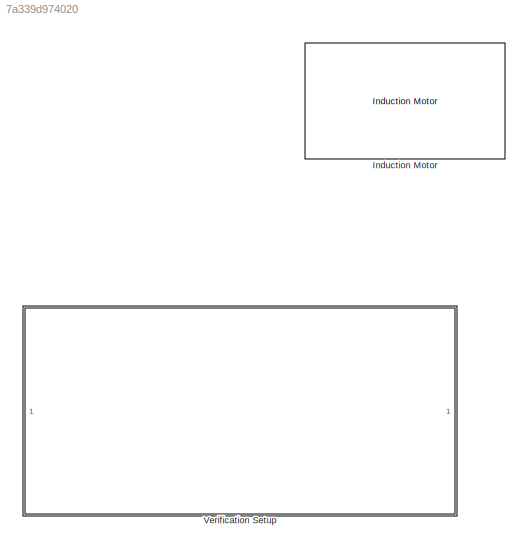
MODEL slx_7a339d974020
KIND model
CONFIG AbsTol = auto
CONFIG EnableMultiTasking = off
CONFIG FixedStep = 0.01
CONFIG MaxStep = auto
CONFIG MinStep = auto
CONFIG RelTol = 1e-3
CONFIG SampleTimeConstraint = Unconstrained
CONFIG SolverName = FixedStepAuto
CONFIG StartTime = 0.0
CONFIG StopTime = 50
BLOCK [Reference] Induction Motor  REF=autolibim/Induction Motor
  Commented = on
  LibrarySourceBlock = autolibemachines/Induction Motor
  SourceBlock = autolibim/Induction Motor
  SourceType = Induction Motor
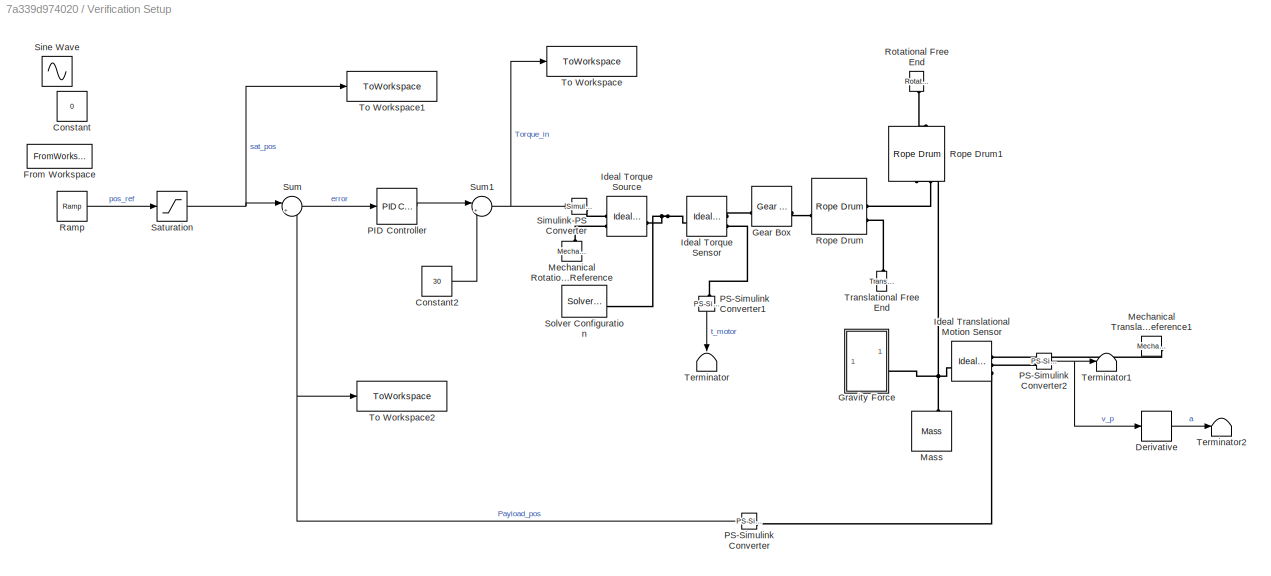
BLOCK [SubSystem] Verification Setup
BLOCK [Constant] Verification Setup/Constant
  Commented = on
  Value = 0
BLOCK [Constant] Verification Setup/Constant2
  Value = 30
BLOCK [Derivative] Verification Setup/Derivative
BLOCK [FromWorkspace] Verification Setup/From Workspace
  Commented = on
  SampleTime = 0.01
  VariableName = winch_pos
BLOCK [Reference] Verification Setup/Gear Box  REF=fl_lib/Mechanical/Mechanisms/Gear Box
  SourceBlock = fl_lib/Mechanical/Mechanisms/Gear Box
  SourceType = Gear Box
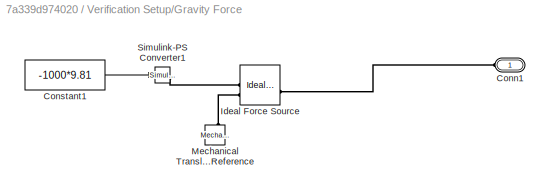
BLOCK [SubSystem] Verification Setup/Gravity Force
  NameLocation = top
BLOCK [PMIOPort] Verification Setup/Gravity Force/Conn1
  Side = Left
BLOCK [Constant] Verification Setup/Gravity Force/Constant1
  Value = -1000*9.81
BLOCK [Reference] Verification Setup/Gravity Force/Ideal Force Source  REF=fl_lib/Mechanical/Mechanical Sources/Ideal Force Source
  SourceBlock = fl_lib/Mechanical/Mechanical Sources/Ideal Force Source
  SourceType = Ideal Force Source
BLOCK [Reference] Verification Setup/Gravity Force/Mechanical Translational Reference  REF=fl_lib/Mechanical/Translational
Elements/Mechanical
Translational
Reference
  NameLocation = right
  SourceBlock = fl_lib/Mechanical/Translational\nElements/Mechanical\nTranslational\nReference
  SourceType = Mechanical\nTranslational\nReference
BLOCK [Reference] Verification Setup/Gravity Force/Simulink-PS Converter1  REF=nesl_utility/Simulink-PS
Converter
  SourceBlock = nesl_utility/Simulink-PS\nConverter
  SourceType = Simulink-PS\nConverter
BLOCK [Reference] Verification Setup/Ideal Torque Sensor  REF=fl_lib/Mechanical/Mechanical Sensors/Ideal Torque Sensor
  SourceBlock = fl_lib/Mechanical/Mechanical Sensors/Ideal Torque Sensor
  SourceType = Ideal Torque Sensor
BLOCK [Reference] Verification Setup/Ideal Torque Source  REF=fl_lib/Mechanical/Mechanical Sources/Ideal Torque Source
  SourceBlock = fl_lib/Mechanical/Mechanical Sources/Ideal Torque Source
  SourceType = Ideal Torque Source
BLOCK [Reference] Verification Setup/Ideal Translational Motion Sensor  REF=fl_lib/Mechanical/Mechanical Sensors/Ideal Translational
Motion Sensor
  SourceBlock = fl_lib/Mechanical/Mechanical Sensors/Ideal Translational\nMotion Sensor
  SourceType = Ideal Translational\nMotion Sensor
BLOCK [Reference] Verification Setup/Mass  REF=fl_lib/Mechanical/Translational
Elements/Mass
  NameLocation = right
  SourceBlock = fl_lib/Mechanical/Translational\nElements/Mass
  SourceType = Mass
BLOCK [Reference] Verification Setup/Mechanical Rotational Reference  REF=fl_lib/Mechanical/Rotational Elements/Mechanical
Rotational Reference
  NameLocation = right
  SourceBlock = fl_lib/Mechanical/Rotational Elements/Mechanical\nRotational Reference
  SourceType = Mechanical\nRotational Reference
BLOCK [Reference] Verification Setup/Mechanical Translational Reference1  REF=fl_lib/Mechanical/Translational
Elements/Mechanical
Translational
Reference
  NameLocation = top
  SourceBlock = fl_lib/Mechanical/Translational\nElements/Mechanical\nTranslational\nReference
  SourceType = Mechanical\nTranslational\nReference
BLOCK [Reference] Verification Setup/PID Controller  REF=slpidlib/PID Controller
  LibrarySourceBlock = simulink/Continuous/PID Controller
  SourceBlock = slpidlib/PID Controller
  SourceType = PID 1dof
BLOCK [Reference] Verification Setup/PS-Simulink Converter  REF=nesl_utility/PS-Simulink
Converter
  NameLocation = top
  SourceBlock = nesl_utility/PS-Simulink\nConverter
  SourceType = PS-Simulink\nConverter
BLOCK [Reference] Verification Setup/PS-Simulink Converter1  REF=nesl_utility/PS-Simulink
Converter
  NameLocation = left
  SourceBlock = nesl_utility/PS-Simulink\nConverter
  SourceType = PS-Simulink\nConverter
BLOCK [Reference] Verification Setup/PS-Simulink Converter2  REF=nesl_utility/PS-Simulink
Converter
  SourceBlock = nesl_utility/PS-Simulink\nConverter
  SourceType = PS-Simulink\nConverter
BLOCK [Reference] Verification Setup/Ramp  REF=simulink/Sources/Ramp
  SourceBlock = simulink/Sources/Ramp
  SourceType = Ramp
BLOCK [Reference] Verification Setup/Rope Drum  REF=sdl_lib/Couplings & Drives/Rope Drum
  SourceBlock = sdl_lib/Couplings & Drives/Rope Drum
  SourceType = Rope Drum
BLOCK [Reference] Verification Setup/Rope Drum1  REF=sdl_lib/Couplings & Drives/Rope Drum
  NameLocation = left
  SourceBlock = sdl_lib/Couplings & Drives/Rope Drum
  SourceType = Rope Drum
BLOCK [Reference] Verification Setup/Rotational Free End  REF=fl_lib/Mechanical/Rotational Elements/Rotational Free End
  NameLocation = left
  SourceBlock = fl_lib/Mechanical/Rotational Elements/Rotational Free End
  SourceType = Rotational Free End
BLOCK [Saturate] Verification Setup/Saturation
  UpperLimit = 3.1415
BLOCK [Reference] Verification Setup/Simulink-PS Converter  REF=nesl_utility/Simulink-PS
Converter
  SourceBlock = nesl_utility/Simulink-PS\nConverter
  SourceType = Simulink-PS\nConverter
BLOCK [Sin] Verification Setup/Sine Wave
  Amplitude = 10
  Commented = on
  Frequency = 0.1
  SampleTime = 0
BLOCK [Reference] Verification Setup/Solver Configuration  REF=nesl_utility/Solver
Configuration
  SourceBlock = nesl_utility/Solver\nConfiguration
  SourceType = Solver\nConfiguration
BLOCK [Sum] Verification Setup/Sum
  Inputs = |+-
BLOCK [Sum] Verification Setup/Sum1
  Inputs = |++
BLOCK [Terminator] Verification Setup/Terminator
  NameLocation = left
BLOCK [Terminator] Verification Setup/Terminator1
BLOCK [Terminator] Verification Setup/Terminator2
BLOCK [ToWorkspace] Verification Setup/To Workspace
  Decimation = 2
  FixptAsFi = on
  MaxDataPoints = inf
  SampleTime = -1
  SaveFormat = Timeseries
  VariableName = torque
BLOCK [ToWorkspace] Verification Setup/To Workspace1
  Decimation = 2
  FixptAsFi = on
  MaxDataPoints = inf
  SampleTime = -1
  SaveFormat = Timeseries
  VariableName = Payload_posref
BLOCK [ToWorkspace] Verification Setup/To Workspace2
  Decimation = 2
  FixptAsFi = on
  MaxDataPoints = inf
  SampleTime = -1
  SaveFormat = Timeseries
  VariableName = real_payload_pos
BLOCK [Reference] Verification Setup/Translational Free End  REF=fl_lib/Mechanical/Translational
Elements/Translational Free
End
  NameLocation = right
  SourceBlock = fl_lib/Mechanical/Translational\nElements/Translational Free\nEnd
  SourceType = Translational Free\nEnd
LINE Verification Setup/Constant2:1 -> Verification Setup/Sum1:2
LINE Verification Setup/Derivative:1 -> Verification Setup/Terminator2:1
LINE Verification Setup/Gravity Force/Constant1:1 -> Verification Setup/Gravity Force/Simulink-PS Converter1:1
LINE Verification Setup/PID Controller:1 -> Verification Setup/Sum1:1
LINE Verification Setup/PS-Simulink Converter1:1 -> Verification Setup/Terminator:1
NET Verification Setup/PS-Simulink Converter2:1 -> Verification Setup/Derivative:1, Verification Setup/Terminator1:1
NET Verification Setup/PS-Simulink Converter:1 -> Verification Setup/Sum:2, Verification Setup/To Workspace2:1
LINE Verification Setup/Ramp:1 -> Verification Setup/Saturation:1
NET Verification Setup/Saturation:1 -> Verification Setup/Sum:1, Verification Setup/To Workspace1:1
NET Verification Setup/Sum1:1 -> Verification Setup/Simulink-PS Converter:1, Verification Setup/To Workspace:1
LINE Verification Setup/Sum:1 -> Verification Setup/PID Controller:1
PLINE Verification Setup/Gear Box:LConn1 -- Verification Setup/Ideal Torque Sensor:RConn1
PLINE Verification Setup/Gear Box:RConn1 -- Verification Setup/Rope Drum:LConn1
PLINE Verification Setup/Gravity Force/Conn1:RConn1 -- Verification Setup/Gravity Force/Ideal Force Source:LConn1
PLINE Verification Setup/Gravity Force/Ideal Force Source:RConn1 -- Verification Setup/Gravity Force/Simulink-PS Converter1:RConn1
PLINE Verification Setup/Gravity Force/Ideal Force Source:RConn2 -- Verification Setup/Gravity Force/Mechanical Translational Reference:LConn1
PNET net1: Verification Setup/Gravity Force:LConn1 -- Verification Setup/Ideal Translational Motion Sensor:LConn1 -- Verification Setup/Mass:LConn1 -- Verification Setup/Rope Drum1:RConn1
PNET net2: Verification Setup/Ideal Torque Sensor:LConn1 -- Verification Setup/Ideal Torque Source:LConn1 -- Verification Setup/Solver Configuration:RConn1
PLINE Verification Setup/Ideal Torque Sensor:RConn2 -- Verification Setup/PS-Simulink Converter1:LConn1
PLINE Verification Setup/Ideal Torque Source:RConn1 -- Verification Setup/Simulink-PS Converter:RConn1
PLINE Verification Setup/Ideal Torque Source:RConn2 -- Verification Setup/Mechanical Rotational Reference:LConn1
PLINE Verification Setup/Ideal Translational Motion Sensor:RConn1 -- Verification Setup/Mechanical Translational Reference1:LConn1
PLINE Verification Setup/Ideal Translational Motion Sensor:RConn2 -- Verification Setup/PS-Simulink Converter2:LConn1
PLINE Verification Setup/Ideal Translational Motion Sensor:RConn3 -- Verification Setup/PS-Simulink Converter:LConn1
PLINE Verification Setup/Rope Drum1:LConn1 -- Verification Setup/Rotational Free End:LConn1
PLINE Verification Setup/Rope Drum1:RConn2 -- Verification Setup/Rope Drum:RConn1
PLINE Verification Setup/Rope Drum:RConn2 -- Verification Setup/Translational Free End:LConn1
note: NET lines group one-source signal fan-out (src -> all destinations, sorted); 1:1 wires keep LINE; PNET lines group multi-terminal physical nets as a canonical sorted terminal list (undirected conserving connections); 2-terminal nets keep the pairwise PLINE form
